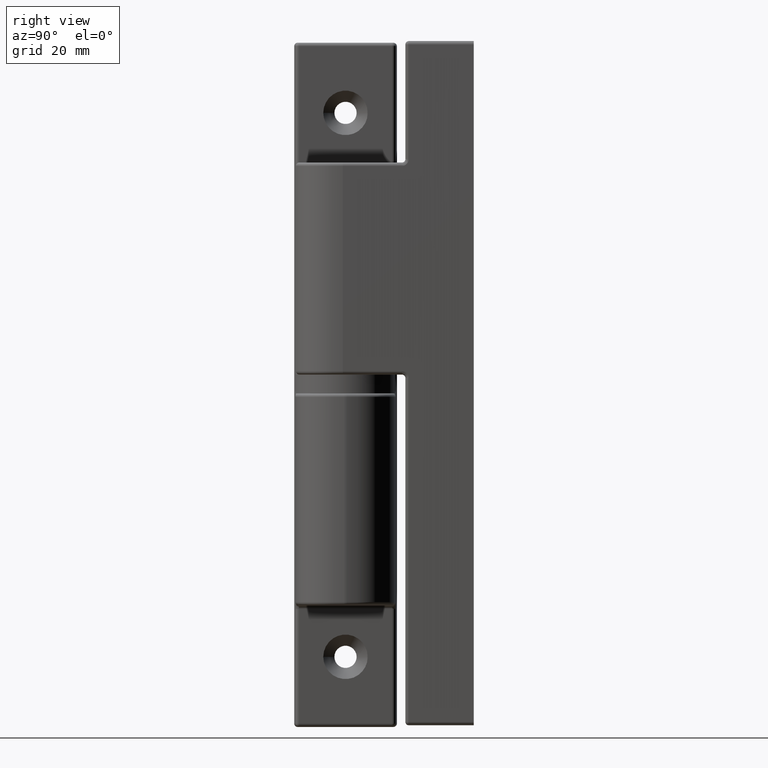
[diagram: clean part render]
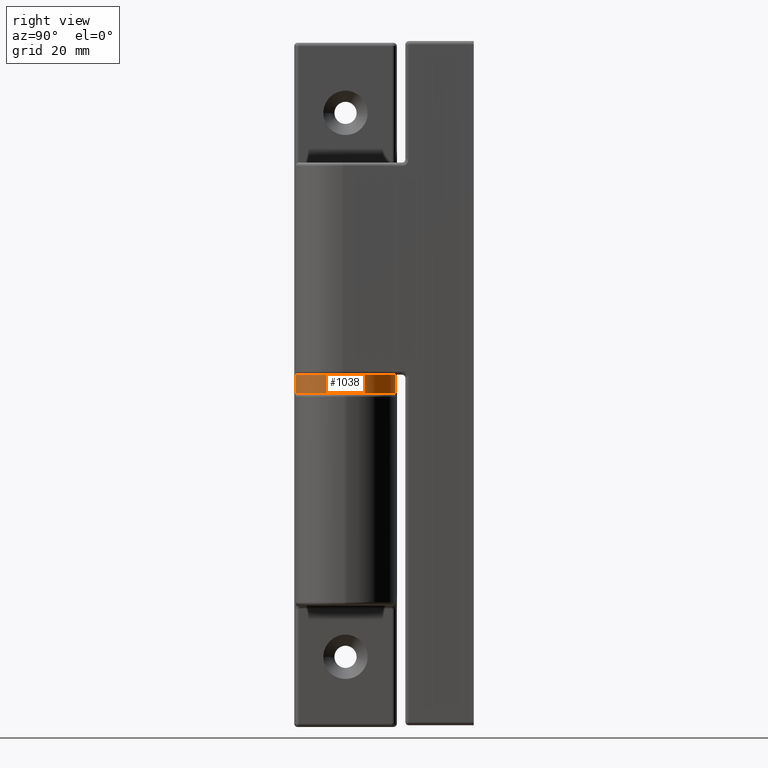
[diagram: same view with one face highlighted and labeled with its STEP entity id]
A machine part, right view. The second image highlights one B-rep face of the part: STEP entity #1038.
In plain terms, the highlighted cylindrical surface (bore or boss wall) has radius 14.5 mm, axis along (-0, 0, -1).
Its self-contained STEP definition (entity closure, byte-faithful):
#81=FACE_BOUND('',#415,.T.);
#232=CYLINDRICAL_SURFACE('',#1195,14.5);
#305=FACE_OUTER_BOUND('',#414,.T.);
#414=EDGE_LOOP('',(#960));
#415=EDGE_LOOP('',(#961));
#480=CIRCLE('',#1183,14.5);
#485=CIRCLE('',#1194,14.5);
#578=VERTEX_POINT('',#1938);
#583=VERTEX_POINT('',#1954);
#704=EDGE_CURVE('',#578,#578,#480,.T.);
#709=EDGE_CURVE('',#583,#583,#485,.T.);
#960=ORIENTED_EDGE('',*,*,#709,.T.);
#961=ORIENTED_EDGE('',*,*,#704,.F.);
#1038=ADVANCED_FACE('',(#305,#81),#232,.T.);
#1183=AXIS2_PLACEMENT_3D('',#1939,#1527,#1528);
#1194=AXIS2_PLACEMENT_3D('',#1955,#1549,#1550);
#1195=AXIS2_PLACEMENT_3D('',#1956,#1551,#1552);
#1527=DIRECTION('center_axis',(1.,0.,0.));
#1528=DIRECTION('ref_axis',(0.,0.,-1.));
#1549=DIRECTION('center_axis',(1.,0.,0.));
#1550=DIRECTION('ref_axis',(0.,0.,-1.));
#1551=DIRECTION('center_axis',(1.,0.,0.));
#1552=DIRECTION('ref_axis',(0.,1.,0.));
#1938=CARTESIAN_POINT('',(2.75,14.5,0.));
#1939=CARTESIAN_POINT('Origin',(2.75,-5.05166804648284E-16,0.));
#1954=CARTESIAN_POINT('',(-2.75,14.5,0.));
#1955=CARTESIAN_POINT('Origin',(-2.75,-5.05166804648284E-16,0.));
#1956=CARTESIAN_POINT('Origin',(0.,-5.05166804648284E-16,0.));